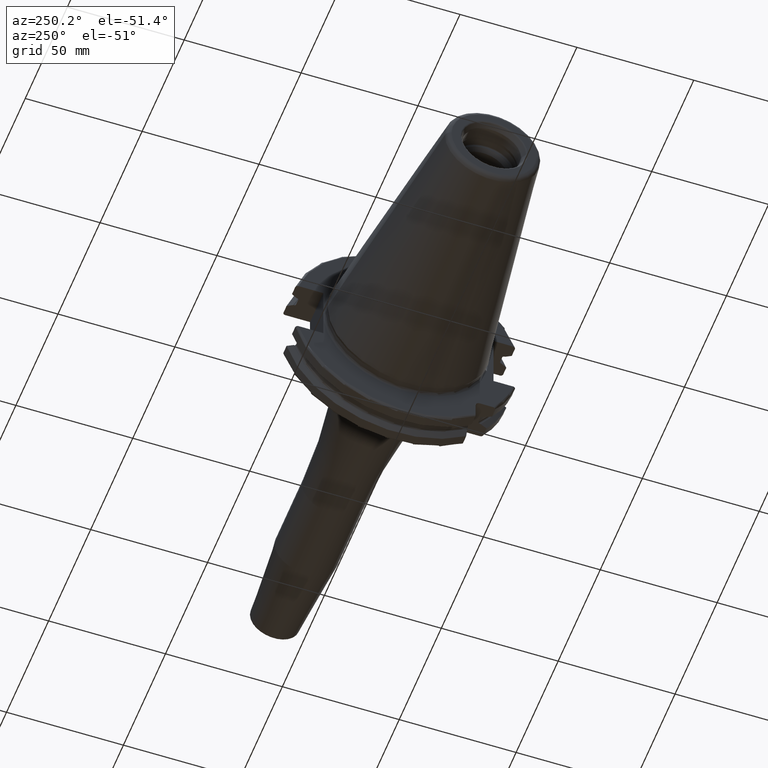
[diagram: clean part render]
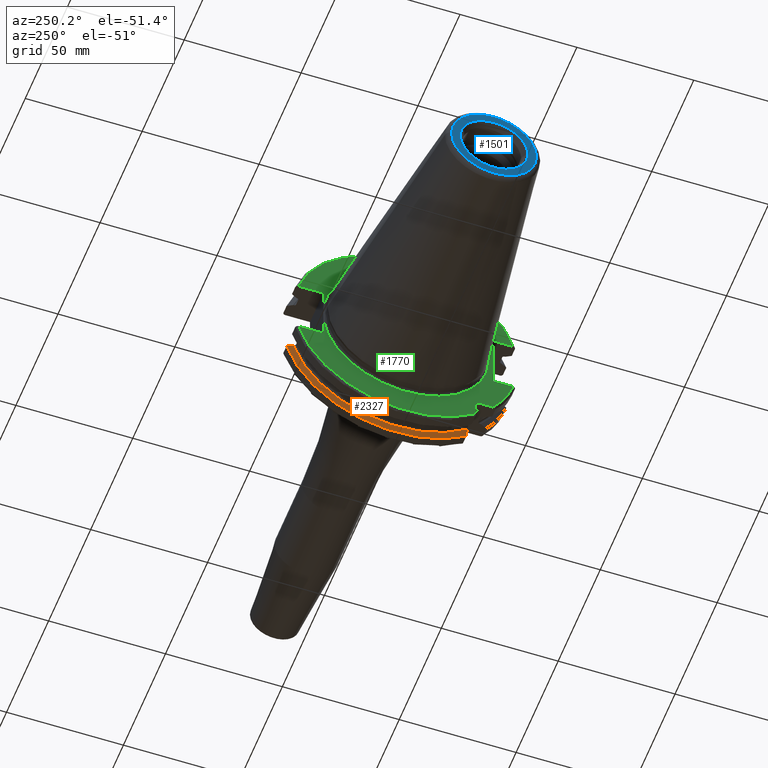
[diagram: same view with three faces highlighted in distinct colors, each labeled with its STEP entity id]
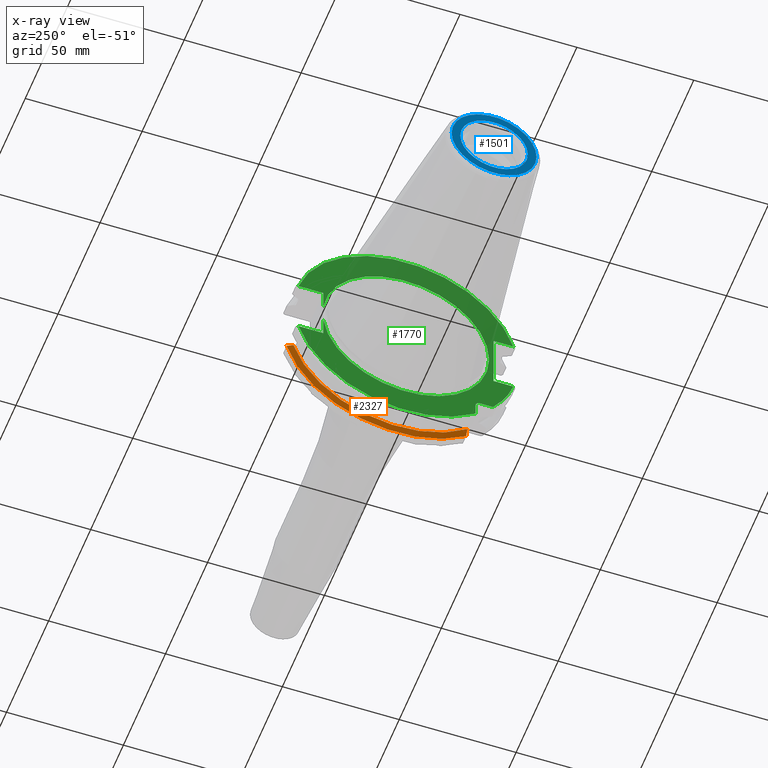
[diagram: x-ray of the same camera — body ghosted, the three highlighted faces saturated]
A machine part, auxiliary view with three faces highlighted in distinct colors.
The next image is the same camera in x-ray (body ghosted, the three faces saturated) — at least one of them is partly hidden behind the body in this view.
Their STEP definitions:

[orange] entity #2327 — the highlighted conical surface has half-angle 60 deg.
#740=CARTESIAN_POINT('',(1.441537838583E1,0.E0,0.E0));
#741=DIRECTION('',(1.E0,0.E0,0.E0));
#742=DIRECTION('',(0.E0,-6.124647345473E-1,-7.904979120376E-1));
#743=AXIS2_PLACEMENT_3D('',#740,#741,#742);
#785=CARTESIAN_POINT('',(1.30875E1,4.460981716077E1,-1.29E1));
#786=CARTESIAN_POINT('',(1.323171622645E1,4.486984125009E1,-1.29E1));
#787=CARTESIAN_POINT('',(1.352236645045E1,4.539353719098E1,-1.29E1));
#788=CARTESIAN_POINT('',(1.396495664446E1,4.618996220278E1,-1.29E1));
#789=CARTESIAN_POINT('',(1.426449561388E1,4.672829507383E1,-1.29E1));
#790=CARTESIAN_POINT('',(1.441537838583E1,4.699929686974E1,-1.29E1));
#792=CARTESIAN_POINT('',(1.30875E1,0.E0,0.E0));
#793=DIRECTION('',(-1.E0,0.E0,0.E0));
#794=DIRECTION('',(0.E0,9.606411165078E-1,-2.777924499957E-1));
#795=AXIS2_PLACEMENT_3D('',#792,#793,#794);
#797=CARTESIAN_POINT('',(1.30875E1,-2.985E1,-3.557278857662E1));
#798=CARTESIAN_POINT('',(1.322720354061E1,-2.985E1,-3.588866659244E1));
#799=CARTESIAN_POINT('',(1.351179500938E1,-2.985E1,-3.652866450573E1));
#800=CARTESIAN_POINT('',(1.395393296765E1,-2.985E1,-3.751242476101E1));
#801=CARTESIAN_POINT('',(1.425975326859E1,-2.985E1,-3.818590359837E1));
#802=CARTESIAN_POINT('',(1.441537838583E1,-2.985E1,-3.852689198793E1));
#1324=CARTESIAN_POINT('',(1.30875E1,4.460981716077E1,-1.29E1));
#1326=VERTEX_POINT('',#1324);
#1344=VERTEX_POINT('',#790);
#1411=CARTESIAN_POINT('',(1.30875E1,-2.985E1,-3.557278857662E1));
#1412=VERTEX_POINT('',#1411);
#1444=VERTEX_POINT('',#802);
#2316=CARTESIAN_POINT('',(1.375143919291E1,0.E0,0.E0));
#2317=DIRECTION('',(1.E0,0.E0,0.E0));
#2318=DIRECTION('',(0.E0,-1.E0,0.E0));
#2319=AXIS2_PLACEMENT_3D('',#2316,#2317,#2318);
#2320=CONICAL_SURFACE('',#2319,4.758752358474E1,6.E1);
#2321=ORIENTED_EDGE('',*,*,#1847,.F.);
#2322=ORIENTED_EDGE('',*,*,#2048,.T.);
#2323=ORIENTED_EDGE('',*,*,#1701,.T.);
#2324=ORIENTED_EDGE('',*,*,#2282,.T.);
#2325=EDGE_LOOP('',(#2321,#2322,#2323,#2324));
#2326=FACE_OUTER_BOUND('',#2325,.F.);
#2327=ADVANCED_FACE('',(#2326),#2320,.T.);
#744=CIRCLE('',#743,4.87375E1);
#791=B_SPLINE_CURVE_WITH_KNOTS('',3,(#785,#786,#787,#788,#789,#790),
.UNSPECIFIED.,.F.,.F.,(4,1,1,4),(0.E0,3.333333333333E-1,6.666666666667E-1,1.E0),
.UNSPECIFIED.);
#796=CIRCLE('',#795,4.643754716948E1);
#803=B_SPLINE_CURVE_WITH_KNOTS('',3,(#797,#798,#799,#800,#801,#802),
.UNSPECIFIED.,.F.,.F.,(4,1,1,4),(0.E0,3.333333333333E-1,6.666666666667E-1,1.E0),
.UNSPECIFIED.);
#1701=EDGE_CURVE('',#1412,#1444,#803,.T.);
#1847=EDGE_CURVE('',#1326,#1344,#791,.T.);
#2048=EDGE_CURVE('',#1326,#1412,#796,.T.);
#2282=EDGE_CURVE('',#1444,#1344,#744,.T.);

[blue] entity #1501 — the highlighted planar face has unit normal (1, 0, 0).
#2=CARTESIAN_POINT('',(-1.016E2,0.E0,0.E0));
#3=DIRECTION('',(-1.E0,0.E0,0.E0));
#4=DIRECTION('',(0.E0,1.E0,0.E0));
#5=AXIS2_PLACEMENT_3D('',#2,#3,#4);
#7=CARTESIAN_POINT('',(-1.016E2,0.E0,0.E0));
#8=DIRECTION('',(1.E0,0.E0,0.E0));
#9=DIRECTION('',(0.E0,1.E0,0.E0));
#10=AXIS2_PLACEMENT_3D('',#7,#8,#9);
#12=CARTESIAN_POINT('',(-1.016E2,0.E0,0.E0));
#13=DIRECTION('',(1.E0,0.E0,0.E0));
#14=DIRECTION('',(0.E0,1.E0,0.E0));
#15=AXIS2_PLACEMENT_3D('',#12,#13,#14);
#17=CARTESIAN_POINT('',(-1.016E2,0.E0,0.E0));
#18=DIRECTION('',(1.E0,0.E0,0.E0));
#19=DIRECTION('',(0.E0,-1.E0,0.E0));
#20=AXIS2_PLACEMENT_3D('',#17,#18,#19);
#1227=CARTESIAN_POINT('',(-1.016E2,1.816144700117E1,0.E0));
#1229=VERTEX_POINT('',#1227);
#1231=CARTESIAN_POINT('',(-1.016E2,-1.816144700117E1,0.E0));
#1233=VERTEX_POINT('',#1231);
#1290=CARTESIAN_POINT('',(-1.016E2,1.446188021535E1,0.E0));
#1291=CARTESIAN_POINT('',(-1.016E2,-1.446188021535E1,0.E0));
#1292=VERTEX_POINT('',#1290);
#1293=VERTEX_POINT('',#1291);
#1484=CARTESIAN_POINT('',(-1.016E2,0.E0,0.E0));
#1485=DIRECTION('',(1.E0,0.E0,0.E0));
#1486=DIRECTION('',(0.E0,-1.E0,0.E0));
#1487=AXIS2_PLACEMENT_3D('',#1484,#1485,#1486);
#1488=PLANE('',#1487);
#1490=ORIENTED_EDGE('',*,*,#1489,.F.);
#1492=ORIENTED_EDGE('',*,*,#1491,.T.);
#1493=EDGE_LOOP('',(#1490,#1492));
#1494=FACE_OUTER_BOUND('',#1493,.F.);
#1496=ORIENTED_EDGE('',*,*,#1495,.F.);
#1498=ORIENTED_EDGE('',*,*,#1497,.F.);
#1499=EDGE_LOOP('',(#1496,#1498));
#1500=FACE_BOUND('',#1499,.F.);
#1501=ADVANCED_FACE('',(#1494,#1500),#1488,.F.);
#6=CIRCLE('',#5,1.816144700117E1);
#11=CIRCLE('',#10,1.816144700117E1);
#16=CIRCLE('',#15,1.446188021535E1);
#21=CIRCLE('',#20,1.446188021535E1);
#1489=EDGE_CURVE('',#1229,#1233,#6,.T.);
#1491=EDGE_CURVE('',#1229,#1233,#11,.T.);
#1495=EDGE_CURVE('',#1292,#1293,#16,.T.);
#1497=EDGE_CURVE('',#1293,#1292,#21,.T.);

[green] entity #1770 — the highlighted planar face has unit normal (1, 0, 0).
#117=CARTESIAN_POINT('',(3.2E0,0.E0,0.E0));
#118=DIRECTION('',(-1.E0,0.E0,0.E0));
#119=DIRECTION('',(0.E0,9.922698524245E-1,-1.240989120402E-1));
#120=AXIS2_PLACEMENT_3D('',#117,#118,#119);
#177=CARTESIAN_POINT('',(3.2E0,-3.16E1,-3.16E1));
#178=DIRECTION('',(1.E0,0.E0,0.E0));
#179=DIRECTION('',(0.E0,1.E0,0.E0));
#180=AXIS2_PLACEMENT_3D('',#177,#178,#179);
#182=DIRECTION('',(0.E0,-1.E0,0.E0));
#183=VECTOR('',#182,5.653810627237E0);
#184=CARTESIAN_POINT('',(3.2E0,-3.16E1,-2.985E1));
#185=LINE('',#184,#183);
#186=DIRECTION('',(0.E0,0.E0,1.E0));
#187=VECTOR('',#186,5.653810627237E0);
#188=CARTESIAN_POINT('',(3.2E0,-2.985E1,-3.725381062724E1));
#189=LINE('',#188,#187);
#190=CARTESIAN_POINT('',(3.2E0,0.E0,0.E0));
#191=DIRECTION('',(-1.E0,0.E0,0.E0));
#192=DIRECTION('',(0.E0,9.627964123359E-1,-2.702278083268E-1));
#193=AXIS2_PLACEMENT_3D('',#190,#191,#192);
#195=DIRECTION('',(0.E0,-1.E0,0.E0));
#196=VECTOR('',#195,1.066149373389E1);
#197=CARTESIAN_POINT('',(3.2E0,4.596149373389E1,-1.29E1));
#198=LINE('',#197,#196);
#199=DIRECTION('',(0.E0,0.E0,-1.E0));
#200=VECTOR('',#199,8.485181204172E0);
#201=CARTESIAN_POINT('',(3.2E0,3.53E1,-4.414818795828E0));
#202=LINE('',#201,#200);
#203=DIRECTION('',(0.E0,0.E0,-1.E0));
#204=VECTOR('',#203,8.485181204172E0);
#205=CARTESIAN_POINT('',(3.2E0,3.53E1,1.29E1));
#206=LINE('',#205,#204);
#207=DIRECTION('',(0.E0,-1.E0,0.E0));
#208=VECTOR('',#207,1.066149373389E1);
#209=CARTESIAN_POINT('',(3.2E0,4.596149373389E1,1.29E1));
#210=LINE('',#209,#208);
#211=CARTESIAN_POINT('',(3.2E0,0.E0,0.E0));
#212=DIRECTION('',(1.E0,0.E0,0.E0));
#213=DIRECTION('',(0.E0,9.627964123359E-1,2.702278083268E-1));
#214=AXIS2_PLACEMENT_3D('',#211,#212,#213);
#216=DIRECTION('',(0.E0,1.E0,0.E0));
#217=VECTOR('',#216,8.461493733886E0);
#218=CARTESIAN_POINT('',(3.2E0,-4.596149373389E1,1.29E1));
#219=LINE('',#218,#217);
#220=DIRECTION('',(0.E0,0.E0,1.E0));
#221=VECTOR('',#220,2.58E1);
#222=CARTESIAN_POINT('',(3.2E0,-3.75E1,-1.29E1));
#223=LINE('',#222,#221);
#224=DIRECTION('',(0.E0,1.E0,0.E0));
#225=VECTOR('',#224,8.461493733886E0);
#226=CARTESIAN_POINT('',(3.2E0,-4.596149373389E1,-1.29E1));
#227=LINE('',#226,#225);
#228=CARTESIAN_POINT('',(3.2E0,0.E0,0.E0));
#229=DIRECTION('',(-1.E0,0.E0,0.E0));
#230=DIRECTION('',(0.E0,-7.803888060170E-1,-6.252945797329E-1));
#231=AXIS2_PLACEMENT_3D('',#228,#229,#230);
#279=CARTESIAN_POINT('',(3.2E0,-3.725381062724E1,-2.985E1));
#891=CARTESIAN_POINT('',(3.2E0,0.E0,0.E0));
#892=DIRECTION('',(1.E0,0.E0,0.E0));
#893=DIRECTION('',(0.E0,9.922698524245E-1,1.240989120402E-1));
#894=AXIS2_PLACEMENT_3D('',#891,#892,#893);
#1238=CARTESIAN_POINT('',(3.2E0,-3.5575E1,0.E0));
#1240=VERTEX_POINT('',#1238);
#1372=CARTESIAN_POINT('',(3.2E0,4.596149373389E1,1.29E1));
#1373=CARTESIAN_POINT('',(3.2E0,3.53E1,1.29E1));
#1374=VERTEX_POINT('',#1372);
#1375=VERTEX_POINT('',#1373);
#1376=CARTESIAN_POINT('',(3.2E0,3.53E1,4.414818795828E0));
#1377=VERTEX_POINT('',#1376);
#1378=CARTESIAN_POINT('',(3.2E0,3.53E1,-4.414818795828E0));
#1379=CARTESIAN_POINT('',(3.2E0,3.53E1,-1.29E1));
#1380=VERTEX_POINT('',#1378);
#1381=VERTEX_POINT('',#1379);
#1382=CARTESIAN_POINT('',(3.2E0,4.596149373389E1,-1.29E1));
#1383=VERTEX_POINT('',#1382);
#1384=CARTESIAN_POINT('',(3.2E0,-4.596149373389E1,-1.29E1));
#1385=CARTESIAN_POINT('',(3.2E0,-3.75E1,-1.29E1));
#1386=VERTEX_POINT('',#1384);
#1387=VERTEX_POINT('',#1385);
#1388=CARTESIAN_POINT('',(3.2E0,-3.75E1,1.29E1));
#1389=VERTEX_POINT('',#1388);
#1390=CARTESIAN_POINT('',(3.2E0,-4.596149373389E1,1.29E1));
#1391=VERTEX_POINT('',#1390);
#1423=CARTESIAN_POINT('',(3.2E0,-2.985E1,-3.725381062724E1));
#1424=VERTEX_POINT('',#1423);
#1429=CARTESIAN_POINT('',(3.2E0,-2.985E1,-3.16E1));
#1430=CARTESIAN_POINT('',(3.2E0,-3.16E1,-2.985E1));
#1431=VERTEX_POINT('',#1429);
#1432=VERTEX_POINT('',#1430);
#1451=VERTEX_POINT('',#279);
#1738=CARTESIAN_POINT('',(3.2E0,0.E0,0.E0));
#1739=DIRECTION('',(1.E0,0.E0,0.E0));
#1740=DIRECTION('',(0.E0,-1.E0,0.E0));
#1741=AXIS2_PLACEMENT_3D('',#1738,#1739,#1740);
#1742=PLANE('',#1741);
#1744=ORIENTED_EDGE('',*,*,#1743,.F.);
#1745=ORIENTED_EDGE('',*,*,#1731,.F.);
#1746=ORIENTED_EDGE('',*,*,#1719,.F.);
#1748=ORIENTED_EDGE('',*,*,#1747,.F.);
#1750=ORIENTED_EDGE('',*,*,#1749,.T.);
#1751=ORIENTED_EDGE('',*,*,#1645,.F.);
#1752=ORIENTED_EDGE('',*,*,#1626,.T.);
#1754=ORIENTED_EDGE('',*,*,#1753,.F.);
#1755=ORIENTED_EDGE('',*,*,#1640,.F.);
#1757=ORIENTED_EDGE('',*,*,#1756,.F.);
#1759=ORIENTED_EDGE('',*,*,#1758,.T.);
#1761=ORIENTED_EDGE('',*,*,#1760,.T.);
#1763=ORIENTED_EDGE('',*,*,#1762,.F.);
#1765=ORIENTED_EDGE('',*,*,#1764,.F.);
#1767=ORIENTED_EDGE('',*,*,#1766,.F.);
#1768=EDGE_LOOP('',(#1744,#1745,#1746,#1748,#1750,#1751,#1752,#1754,#1755,#1757,
#1759,#1761,#1763,#1765,#1767));
#1769=FACE_OUTER_BOUND('',#1768,.F.);
#1770=ADVANCED_FACE('',(#1769),#1742,.F.);
#121=CIRCLE('',#120,3.5575E1);
#181=CIRCLE('',#180,1.75E0);
#194=CIRCLE('',#193,4.77375E1);
#215=CIRCLE('',#214,4.77375E1);
#232=CIRCLE('',#231,4.77375E1);
#895=CIRCLE('',#894,3.5575E1);
#1626=EDGE_CURVE('',#1380,#1240,#121,.T.);
#1640=EDGE_CURVE('',#1375,#1377,#206,.T.);
#1645=EDGE_CURVE('',#1380,#1381,#202,.T.);
#1719=EDGE_CURVE('',#1424,#1431,#189,.T.);
#1731=EDGE_CURVE('',#1431,#1432,#181,.T.);
#1743=EDGE_CURVE('',#1432,#1451,#185,.T.);
#1747=EDGE_CURVE('',#1383,#1424,#194,.T.);
#1749=EDGE_CURVE('',#1383,#1381,#198,.T.);
#1753=EDGE_CURVE('',#1377,#1240,#895,.T.);
#1756=EDGE_CURVE('',#1374,#1375,#210,.T.);
#1758=EDGE_CURVE('',#1374,#1391,#215,.T.);
#1760=EDGE_CURVE('',#1391,#1389,#219,.T.);
#1762=EDGE_CURVE('',#1387,#1389,#223,.T.);
#1764=EDGE_CURVE('',#1386,#1387,#227,.T.);
#1766=EDGE_CURVE('',#1451,#1386,#232,.T.);